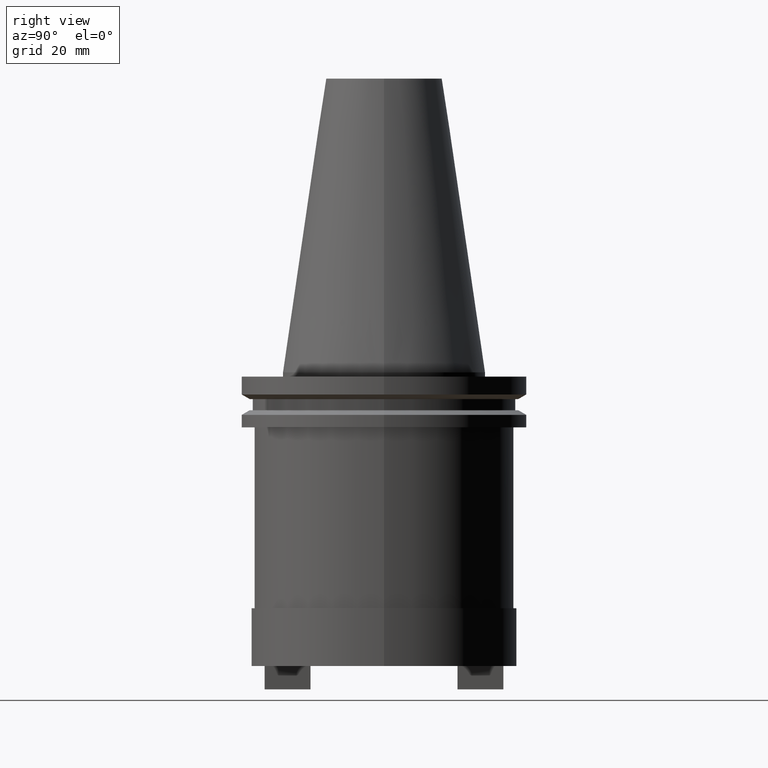
[diagram: clean part render]
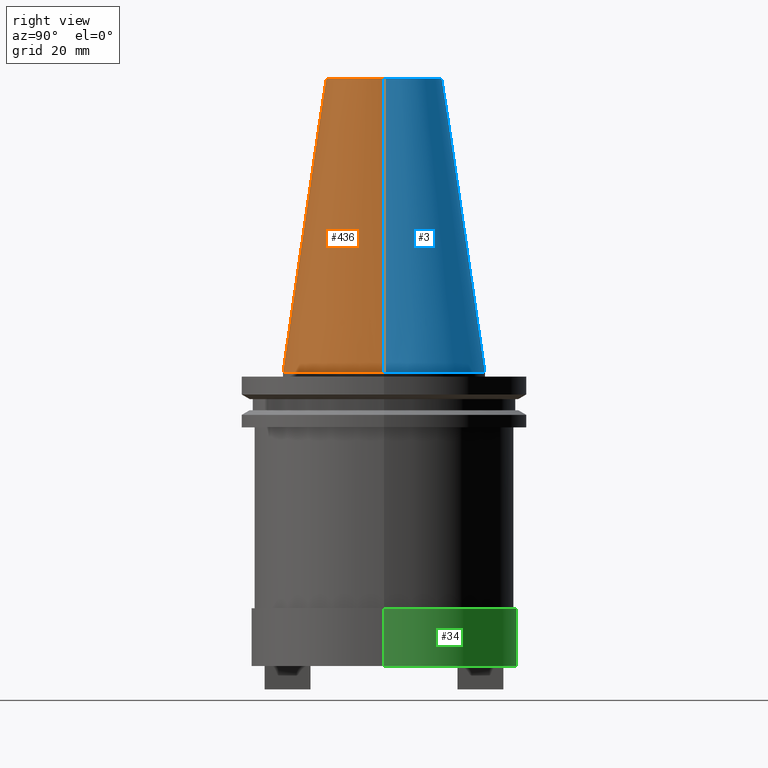
[diagram: same view with three faces highlighted in distinct colors, each labeled with its STEP entity id]
A machine part, right view with three faces highlighted in distinct colors.
Their STEP definitions:

[orange] entity #436 — the highlighted conical surface has half-angle 8.297 deg.
#5 = EDGE_CURVE ( 'NONE', #887, #789, #555, .T. ) ;
#67 = VECTOR ( 'NONE', #627, 999.9999999999998863 ) ;
#92 = DIRECTION ( 'NONE',  ( -0.000000000000000000, -0.000000000000000000, 1.000000000000000000 ) ) ;
#133 = DIRECTION ( 'NONE',  ( -0.1443082272672999988, 0.000000000000000000, -0.9895327864921755756 ) ) ;
#135 = VERTEX_POINT ( 'NONE', #249 ) ;
#206 = LINE ( 'NONE', #285, #67 ) ;
#249 = CARTESIAN_POINT ( 'NONE',  ( 20.10819343178871321, 3.369811209154858606E-15, 101.5999999999999801 ) ) ;
#251 = ORIENTED_EDGE ( 'NONE', *, *, #942, .T. ) ;
#262 = DIRECTION ( 'NONE',  ( 0.000000000000000000, 0.000000000000000000, -1.000000000000000000 ) ) ;
#285 = CARTESIAN_POINT ( 'NONE',  ( 34.92499999999999005, 4.277078946022130098E-15, 0.000000000000000000 ) ) ;
#300 = AXIS2_PLACEMENT_3D ( 'NONE', #840, #92, #357 ) ;
#343 = AXIS2_PLACEMENT_3D ( 'NONE', #749, #262, #511 ) ;
#357 = DIRECTION ( 'NONE',  ( 1.000000000000000000, 0.000000000000000000, 0.000000000000000000 ) ) ;
#436 = ADVANCED_FACE ( 'NONE', ( #516 ), #811, .T. ) ;
#481 = VECTOR ( 'NONE', #133, 999.9999999999998863 ) ;
#488 = EDGE_CURVE ( 'NONE', #887, #135, #502, .T. ) ;
#502 = CIRCLE ( 'NONE', #873, 20.10819343178871321 ) ;
#511 = DIRECTION ( 'NONE',  ( -1.000000000000000000, 0.000000000000000000, 0.000000000000000000 ) ) ;
#516 = FACE_OUTER_BOUND ( 'NONE', #562, .T. ) ;
#555 = LINE ( 'NONE', #645, #481 ) ;
#562 = EDGE_LOOP ( 'NONE', ( #951, #763, #794, #251 ) ) ;
#586 = EDGE_CURVE ( 'NONE', #135, #731, #206, .T. ) ;
#627 = DIRECTION ( 'NONE',  ( 0.1443082272672999988, 1.767266086135277066E-17, -0.9895327864921755756 ) ) ;
#645 = CARTESIAN_POINT ( 'NONE',  ( -34.92499999999999005, 0.000000000000000000, 0.000000000000000000 ) ) ;
#664 = CARTESIAN_POINT ( 'NONE',  ( -34.92499999999999005, 0.000000000000000000, 0.000000000000000000 ) ) ;
#731 = VERTEX_POINT ( 'NONE', #927 ) ;
#749 = CARTESIAN_POINT ( 'NONE',  ( 0.000000000000000000, 0.000000000000000000, 0.000000000000000000 ) ) ;
#763 = ORIENTED_EDGE ( 'NONE', *, *, #488, .F. ) ;
#789 = VERTEX_POINT ( 'NONE', #664 ) ;
#794 = ORIENTED_EDGE ( 'NONE', *, *, #5, .T. ) ;
#811 = CONICAL_SURFACE ( 'NONE', #343, 34.92499999999999005, 0.1448138465474119452 ) ;
#840 = CARTESIAN_POINT ( 'NONE',  ( 0.000000000000000000, 0.000000000000000000, 0.000000000000000000 ) ) ;
#873 = AXIS2_PLACEMENT_3D ( 'NONE', #988, #998, #1084 ) ;
#887 = VERTEX_POINT ( 'NONE', #924 ) ;
#924 = CARTESIAN_POINT ( 'NONE',  ( -20.10819343178871321, 0.000000000000000000, 101.5999999999999801 ) ) ;
#927 = CARTESIAN_POINT ( 'NONE',  ( 34.92499999999999005, 4.277078946022130098E-15, 0.000000000000000000 ) ) ;
#942 = EDGE_CURVE ( 'NONE', #789, #731, #978, .T. ) ;
#951 = ORIENTED_EDGE ( 'NONE', *, *, #586, .F. ) ;
#978 = CIRCLE ( 'NONE', #300, 34.92499999999999005 ) ;
#988 = CARTESIAN_POINT ( 'NONE',  ( 0.000000000000000000, 0.000000000000000000, 101.5999999999999801 ) ) ;
#998 = DIRECTION ( 'NONE',  ( -0.000000000000000000, -0.000000000000000000, 1.000000000000000000 ) ) ;
#1084 = DIRECTION ( 'NONE',  ( 1.000000000000000000, 0.000000000000000000, 0.000000000000000000 ) ) ;

[blue] entity #3 — the highlighted conical surface has half-angle 8.297 deg.
#3 = ADVANCED_FACE ( 'NONE', ( #151 ), #161, .T. ) ;
#5 = EDGE_CURVE ( 'NONE', #887, #789, #555, .T. ) ;
#29 = ORIENTED_EDGE ( 'NONE', *, *, #586, .T. ) ;
#37 = DIRECTION ( 'NONE',  ( -1.000000000000000000, 0.000000000000000000, 0.000000000000000000 ) ) ;
#43 = DIRECTION ( 'NONE',  ( -0.000000000000000000, -0.000000000000000000, 1.000000000000000000 ) ) ;
#48 = AXIS2_PLACEMENT_3D ( 'NONE', #885, #43, #489 ) ;
#52 = EDGE_CURVE ( 'NONE', #731, #789, #1027, .T. ) ;
#67 = VECTOR ( 'NONE', #627, 999.9999999999998863 ) ;
#133 = DIRECTION ( 'NONE',  ( -0.1443082272672999988, 0.000000000000000000, -0.9895327864921755756 ) ) ;
#135 = VERTEX_POINT ( 'NONE', #249 ) ;
#151 = FACE_OUTER_BOUND ( 'NONE', #311, .T. ) ;
#161 = CONICAL_SURFACE ( 'NONE', #774, 34.92499999999999005, 0.1448138465474119452 ) ;
#206 = LINE ( 'NONE', #285, #67 ) ;
#249 = CARTESIAN_POINT ( 'NONE',  ( 20.10819343178871321, 3.369811209154858606E-15, 101.5999999999999801 ) ) ;
#285 = CARTESIAN_POINT ( 'NONE',  ( 34.92499999999999005, 4.277078946022130098E-15, 0.000000000000000000 ) ) ;
#311 = EDGE_LOOP ( 'NONE', ( #388, #29, #576, #359 ) ) ;
#359 = ORIENTED_EDGE ( 'NONE', *, *, #5, .F. ) ;
#388 = ORIENTED_EDGE ( 'NONE', *, *, #965, .F. ) ;
#474 = DIRECTION ( 'NONE',  ( 0.000000000000000000, 0.000000000000000000, -1.000000000000000000 ) ) ;
#481 = VECTOR ( 'NONE', #133, 999.9999999999998863 ) ;
#489 = DIRECTION ( 'NONE',  ( 1.000000000000000000, 0.000000000000000000, 0.000000000000000000 ) ) ;
#505 = DIRECTION ( 'NONE',  ( -0.000000000000000000, -0.000000000000000000, 1.000000000000000000 ) ) ;
#555 = LINE ( 'NONE', #645, #481 ) ;
#568 = CARTESIAN_POINT ( 'NONE',  ( 0.000000000000000000, 0.000000000000000000, 0.000000000000000000 ) ) ;
#576 = ORIENTED_EDGE ( 'NONE', *, *, #52, .T. ) ;
#586 = EDGE_CURVE ( 'NONE', #135, #731, #206, .T. ) ;
#627 = DIRECTION ( 'NONE',  ( 0.1443082272672999988, 1.767266086135277066E-17, -0.9895327864921755756 ) ) ;
#636 = AXIS2_PLACEMENT_3D ( 'NONE', #920, #505, #685 ) ;
#645 = CARTESIAN_POINT ( 'NONE',  ( -34.92499999999999005, 0.000000000000000000, 0.000000000000000000 ) ) ;
#664 = CARTESIAN_POINT ( 'NONE',  ( -34.92499999999999005, 0.000000000000000000, 0.000000000000000000 ) ) ;
#685 = DIRECTION ( 'NONE',  ( 1.000000000000000000, 0.000000000000000000, 0.000000000000000000 ) ) ;
#731 = VERTEX_POINT ( 'NONE', #927 ) ;
#774 = AXIS2_PLACEMENT_3D ( 'NONE', #568, #474, #37 ) ;
#789 = VERTEX_POINT ( 'NONE', #664 ) ;
#871 = CIRCLE ( 'NONE', #636, 20.10819343178871321 ) ;
#885 = CARTESIAN_POINT ( 'NONE',  ( 0.000000000000000000, 0.000000000000000000, 0.000000000000000000 ) ) ;
#887 = VERTEX_POINT ( 'NONE', #924 ) ;
#920 = CARTESIAN_POINT ( 'NONE',  ( 0.000000000000000000, 0.000000000000000000, 101.5999999999999801 ) ) ;
#924 = CARTESIAN_POINT ( 'NONE',  ( -20.10819343178871321, 0.000000000000000000, 101.5999999999999801 ) ) ;
#927 = CARTESIAN_POINT ( 'NONE',  ( 34.92499999999999005, 4.277078946022130098E-15, 0.000000000000000000 ) ) ;
#965 = EDGE_CURVE ( 'NONE', #135, #887, #871, .T. ) ;
#1027 = CIRCLE ( 'NONE', #48, 34.92499999999999005 ) ;

[green] entity #34 — the highlighted cylindrical surface (partial cylindrical patch) has radius 46.05 mm, axis along (-0, -0, 1).
#34 = ADVANCED_FACE ( 'NONE', ( #482 ), #805, .T. ) ;
#55 = ORIENTED_EDGE ( 'NONE', *, *, #839, .T. ) ;
#61 = VERTEX_POINT ( 'NONE', #650 ) ;
#64 = CARTESIAN_POINT ( 'NONE',  ( 46.04999999999999716, 0.000000000000000000, -101.5999999999999943 ) ) ;
#100 = CARTESIAN_POINT ( 'NONE',  ( -46.04999999999999716, 5.639498510073560988E-15, -81.59999999999999432 ) ) ;
#109 = VERTEX_POINT ( 'NONE', #64 ) ;
#123 = ORIENTED_EDGE ( 'NONE', *, *, #330, .F. ) ;
#130 = EDGE_CURVE ( 'NONE', #109, #61, #350, .T. ) ;
#170 = LINE ( 'NONE', #1074, #484 ) ;
#178 = CIRCLE ( 'NONE', #461, 46.04999999999999716 ) ;
#184 = VERTEX_POINT ( 'NONE', #100 ) ;
#293 = CARTESIAN_POINT ( 'NONE',  ( -46.04999999999999716, 5.639498510073560988E-15, -101.5999999999999943 ) ) ;
#315 = DIRECTION ( 'NONE',  ( 1.000000000000000000, 0.000000000000000000, 0.000000000000000000 ) ) ;
#326 = DIRECTION ( 'NONE',  ( 1.000000000000000000, 0.000000000000000000, 0.000000000000000000 ) ) ;
#330 = EDGE_CURVE ( 'NONE', #61, #184, #178, .T. ) ;
#332 = DIRECTION ( 'NONE',  ( -0.000000000000000000, -0.000000000000000000, 1.000000000000000000 ) ) ;
#350 = LINE ( 'NONE', #684, #1029 ) ;
#417 = CARTESIAN_POINT ( 'NONE',  ( 0.000000000000000000, 0.000000000000000000, -101.5999999999999943 ) ) ;
#461 = AXIS2_PLACEMENT_3D ( 'NONE', #572, #486, #315 ) ;
#471 = EDGE_CURVE ( 'NONE', #1077, #184, #170, .T. ) ;
#475 = DIRECTION ( 'NONE',  ( 1.000000000000000000, 0.000000000000000000, 0.000000000000000000 ) ) ;
#482 = FACE_OUTER_BOUND ( 'NONE', #917, .T. ) ;
#484 = VECTOR ( 'NONE', #598, 1000.000000000000000 ) ;
#486 = DIRECTION ( 'NONE',  ( -0.000000000000000000, -0.000000000000000000, 1.000000000000000000 ) ) ;
#498 = CIRCLE ( 'NONE', #634, 46.04999999999999716 ) ;
#510 = ORIENTED_EDGE ( 'NONE', *, *, #471, .T. ) ;
#572 = CARTESIAN_POINT ( 'NONE',  ( 0.000000000000000000, 0.000000000000000000, -81.59999999999999432 ) ) ;
#598 = DIRECTION ( 'NONE',  ( -0.000000000000000000, -0.000000000000000000, 1.000000000000000000 ) ) ;
#634 = AXIS2_PLACEMENT_3D ( 'NONE', #417, #881, #475 ) ;
#641 = CARTESIAN_POINT ( 'NONE',  ( 0.000000000000000000, 0.000000000000000000, 0.000000000000000000 ) ) ;
#650 = CARTESIAN_POINT ( 'NONE',  ( 46.04999999999999716, 0.000000000000000000, -81.59999999999999432 ) ) ;
#684 = CARTESIAN_POINT ( 'NONE',  ( 46.04999999999999716, 0.000000000000000000, 0.000000000000000000 ) ) ;
#740 = ORIENTED_EDGE ( 'NONE', *, *, #130, .F. ) ;
#805 = CYLINDRICAL_SURFACE ( 'NONE', #891, 46.04999999999999716 ) ;
#839 = EDGE_CURVE ( 'NONE', #109, #1077, #498, .T. ) ;
#881 = DIRECTION ( 'NONE',  ( -0.000000000000000000, -0.000000000000000000, 1.000000000000000000 ) ) ;
#891 = AXIS2_PLACEMENT_3D ( 'NONE', #641, #1041, #326 ) ;
#917 = EDGE_LOOP ( 'NONE', ( #55, #510, #123, #740 ) ) ;
#1029 = VECTOR ( 'NONE', #332, 1000.000000000000000 ) ;
#1041 = DIRECTION ( 'NONE',  ( -0.000000000000000000, -0.000000000000000000, 1.000000000000000000 ) ) ;
#1074 = CARTESIAN_POINT ( 'NONE',  ( -46.04999999999999716, 5.639498510073560988E-15, 0.000000000000000000 ) ) ;
#1077 = VERTEX_POINT ( 'NONE', #293 ) ;